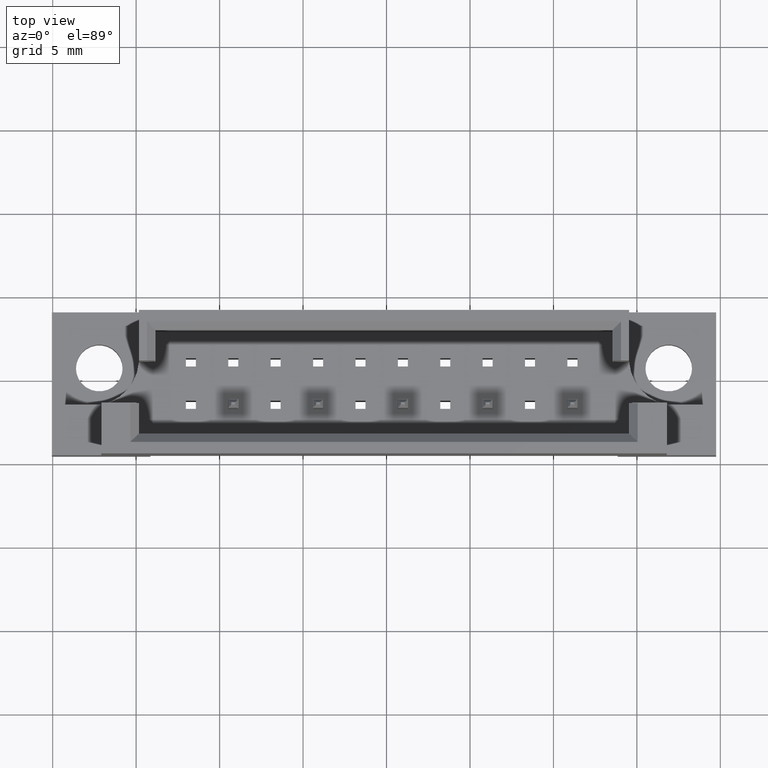
[diagram: clean part render]
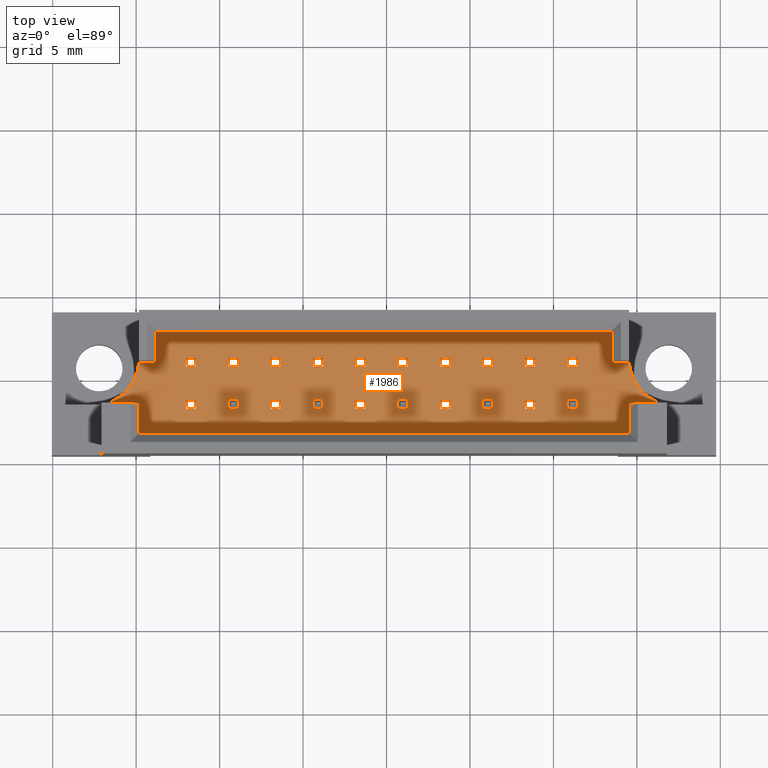
[diagram: same view with one face highlighted and labeled with its STEP entity id]
A machine part, top view. The second image highlights one B-rep face of the part: STEP entity #1986.
In plain terms, the highlighted planar face has unit normal (0, 0, 1).
Its self-contained STEP definition (entity closure, byte-faithful):
#14 = LINE ( 'NONE', #1979, #914 ) ;
#19 = LINE ( 'NONE', #910, #4094 ) ;
#31 = LINE ( 'NONE', #4859, #3092 ) ;
#67 = VERTEX_POINT ( 'NONE', #4893 ) ;
#69 = DIRECTION ( 'NONE',  ( 1.000000000000000000, 8.298255432836044823E-33, 0.0000000000000000000 ) ) ;
#92 = VERTEX_POINT ( 'NONE', #1741 ) ;
#97 = LINE ( 'NONE', #523, #4002 ) ;
#100 = EDGE_CURVE ( 'NONE', #2984, #4249, #3640, .T. ) ;
#113 = VERTEX_POINT ( 'NONE', #2867 ) ;
#133 = ORIENTED_EDGE ( 'NONE', *, *, #3289, .T. ) ;
#138 = VERTEX_POINT ( 'NONE', #1584 ) ;
#147 = AXIS2_PLACEMENT_3D ( 'NONE', #3182, #2457, #474 ) ;
#161 = EDGE_CURVE ( 'NONE', #4185, #3414, #2069, .T. ) ;
#164 = CARTESIAN_POINT ( 'NONE',  ( -8.730000000000000426, -1.520000000000001350, 5.199999999999999289 ) ) ;
#170 = EDGE_CURVE ( 'NONE', #823, #3414, #4672, .T. ) ;
#175 = VERTEX_POINT ( 'NONE', #363 ) ;
#176 = CARTESIAN_POINT ( 'NONE',  ( -19.90000000000000213, 4.299999999999996270, 5.199999999999999289 ) ) ;
#187 = DIRECTION ( 'NONE',  ( 1.000000000000000000, 8.298255432836044823E-33, 0.0000000000000000000 ) ) ;
#194 = ORIENTED_EDGE ( 'NONE', *, *, #4584, .T. ) ;
#201 = VERTEX_POINT ( 'NONE', #3623 ) ;
#216 = VECTOR ( 'NONE', #4140, 1000.000000000000000 ) ;
#217 = CARTESIAN_POINT ( 'NONE',  ( -17.48233981823222294, 1.476974248434024251, 5.200000000000000178 ) ) ;
#219 = VERTEX_POINT ( 'NONE', #2841 ) ;
#223 = CARTESIAN_POINT ( 'NONE',  ( 8.449999999999997513, -1.020000000000001128, 5.199999999999999289 ) ) ;
#244 = VECTOR ( 'NONE', #1440, 1000.000000000000000 ) ;
#272 = ORIENTED_EDGE ( 'NONE', *, *, #3626, .T. ) ;
#273 = CARTESIAN_POINT ( 'NONE',  ( 8.449999999999997513, 1.020000000000002016, 5.199999999999999289 ) ) ;
#278 = CARTESIAN_POINT ( 'NONE',  ( 5.909999999999998366, 1.020000000000002016, 5.199999999999999289 ) ) ;
#284 = EDGE_CURVE ( 'NONE', #1439, #4151, #923, .T. ) ;
#287 = DIRECTION ( 'NONE',  ( 1.000000000000000000, 8.298255432836044823E-33, 0.0000000000000000000 ) ) ;
#300 = CARTESIAN_POINT ( 'NONE',  ( -6.189999999999997726, -1.520000000000001350, 5.199999999999999289 ) ) ;
#307 = DIRECTION ( 'NONE',  ( 1.000000000000000000, 8.298255432836044823E-33, 0.0000000000000000000 ) ) ;
#316 = VECTOR ( 'NONE', #4201, 1000.000000000000000 ) ;
#317 = EDGE_CURVE ( 'NONE', #4249, #1459, #3507, .T. ) ;
#323 = VECTOR ( 'NONE', #1453, 1000.000000000000000 ) ;
#324 = CARTESIAN_POINT ( 'NONE',  ( -11.27000000000000135, 1.520000000000001794, 5.199999999999999289 ) ) ;
#325 = DIRECTION ( 'NONE',  ( -1.000000000000000000, -8.298255432836044823E-33, 0.0000000000000000000 ) ) ;
#327 = VECTOR ( 'NONE', #2995, 1000.000000000000000 ) ;
#341 = LINE ( 'NONE', #3575, #4311 ) ;
#344 = LINE ( 'NONE', #3238, #3603 ) ;
#348 = DIRECTION ( 'NONE',  ( -1.000000000000000000, -1.106434057711472506E-32, 0.0000000000000000000 ) ) ;
#351 = LINE ( 'NONE', #4315, #947 ) ;
#352 = ORIENTED_EDGE ( 'NONE', *, *, #3133, .T. ) ;
#356 = ORIENTED_EDGE ( 'NONE', *, *, #3033, .T. ) ;
#363 = CARTESIAN_POINT ( 'NONE',  ( 6.510000000000001563, -1.020000000000001128, 5.199999999999999289 ) ) ;
#368 = DIRECTION ( 'NONE',  ( 1.581382534738504097E-32, 1.000000000000000000, -0.0000000000000000000 ) ) ;
#406 = ORIENTED_EDGE ( 'NONE', *, *, #2946, .T. ) ;
#413 = CARTESIAN_POINT ( 'NONE',  ( -4.250000000000000888, 1.020000000000002016, 5.199999999999999289 ) ) ;
#419 = EDGE_CURVE ( 'NONE', #4938, #5099, #3397, .T. ) ;
#426 = DIRECTION ( 'NONE',  ( 1.581382534738504097E-32, 1.000000000000000000, -0.0000000000000000000 ) ) ;
#440 = ORIENTED_EDGE ( 'NONE', *, *, #4205, .T. ) ;
#442 = DIRECTION ( 'NONE',  ( -1.000000000000000000, -1.106434057711472506E-32, 0.0000000000000000000 ) ) ;
#448 = LINE ( 'NONE', #2552, #216 ) ;
#459 = ORIENTED_EDGE ( 'NONE', *, *, #4877, .T. ) ;
#465 = LINE ( 'NONE', #3665, #3851 ) ;
#474 = DIRECTION ( 'NONE',  ( 1.000000000000000000, 0.0000000000000000000, 0.0000000000000000000 ) ) ;
#498 = DIRECTION ( 'NONE',  ( 1.581382534738504097E-32, 1.000000000000000000, -0.0000000000000000000 ) ) ;
#519 = CARTESIAN_POINT ( 'NONE',  ( 10.99000000000000021, 1.520000000000001794, 5.199999999999999289 ) ) ;
#523 = CARTESIAN_POINT ( 'NONE',  ( -1.710000000000002407, -1.020000000000001128, 5.199999999999999289 ) ) ;
#533 = EDGE_CURVE ( 'NONE', #3585, #1456, #3833, .T. ) ;
#537 = VERTEX_POINT ( 'NONE', #4670 ) ;
#540 = ORIENTED_EDGE ( 'NONE', *, *, #284, .T. ) ;
#541 = CARTESIAN_POINT ( 'NONE',  ( -8.730000000000000426, 1.520000000000001794, 5.199999999999999289 ) ) ;
#543 = CARTESIAN_POINT ( 'NONE',  ( 5.909999999999998366, -1.020000000000001128, 5.199999999999999289 ) ) ;
#544 = EDGE_CURVE ( 'NONE', #2782, #2538, #3884, .T. ) ;
#548 = FACE_BOUND ( 'NONE', #1634, .T. ) ;
#554 = EDGE_CURVE ( 'NONE', #92, #1630, #4473, .T. ) ;
#561 = DIRECTION ( 'NONE',  ( -1.000000000000000000, -4.670409358399072282E-16, -0.0000000000000000000 ) ) ;
#567 = DIRECTION ( 'NONE',  ( 1.000000000000000000, 8.298255432836044823E-33, 0.0000000000000000000 ) ) ;
#568 = VERTEX_POINT ( 'NONE', #2901 ) ;
#571 = FACE_BOUND ( 'NONE', #4050, .T. ) ;
#573 = CARTESIAN_POINT ( 'NONE',  ( -6.790000000000001812, 1.020000000000002016, 5.199999999999999289 ) ) ;
#585 = CARTESIAN_POINT ( 'NONE',  ( 5.909999999999998366, -1.520000000000000906, 5.199999999999999289 ) ) ;
#586 = VECTOR ( 'NONE', #3082, 1000.000000000000000 ) ;
#590 = VECTOR ( 'NONE', #2477, 1000.000000000000000 ) ;
#595 = ORIENTED_EDGE ( 'NONE', *, *, #1069, .T. ) ;
#597 = VECTOR ( 'NONE', #2044, 1000.000000000000000 ) ;
#601 = CARTESIAN_POINT ( 'NONE',  ( 3.970000000000001528, -1.520000000000001350, 5.199999999999999289 ) ) ;
#603 = EDGE_CURVE ( 'NONE', #1358, #92, #2818, .T. ) ;
#610 = LINE ( 'NONE', #5052, #2932 ) ;
#615 = ORIENTED_EDGE ( 'NONE', *, *, #785, .T. ) ;
#617 = LINE ( 'NONE', #1374, #2096 ) ;
#622 = ORIENTED_EDGE ( 'NONE', *, *, #2256, .T. ) ;
#625 = DIRECTION ( 'NONE',  ( 0.0000000000000000000, 0.0000000000000000000, 1.000000000000000000 ) ) ;
#633 = DIRECTION ( 'NONE',  ( -7.906912673692520484E-33, -1.000000000000000000, 0.0000000000000000000 ) ) ;
#637 = DIRECTION ( 'NONE',  ( -7.906912673692520484E-33, -1.000000000000000000, 0.0000000000000000000 ) ) ;
#640 = ORIENTED_EDGE ( 'NONE', *, *, #4119, .T. ) ;
#644 = CARTESIAN_POINT ( 'NONE',  ( -6.790000000000001812, -1.520000000000000906, 5.199999999999999289 ) ) ;
#650 = ORIENTED_EDGE ( 'NONE', *, *, #4621, .T. ) ;
#653 = DIRECTION ( 'NONE',  ( 0.0000000000000000000, 0.0000000000000000000, 1.000000000000000000 ) ) ;
#665 = LINE ( 'NONE', #4644, #2925 ) ;
#671 = CARTESIAN_POINT ( 'NONE',  ( -11.87000000000000455, -1.520000000000000906, 5.199999999999999289 ) ) ;
#677 = EDGE_CURVE ( 'NONE', #823, #2064, #617, .T. ) ;
#685 = LINE ( 'NONE', #2989, #2272 ) ;
#698 = VECTOR ( 'NONE', #2857, 1000.000000000000000 ) ;
#704 = EDGE_CURVE ( 'NONE', #1823, #3585, #2232, .T. ) ;
#711 = VERTEX_POINT ( 'NONE', #164 ) ;
#718 = LINE ( 'NONE', #5062, #2174 ) ;
#720 = CARTESIAN_POINT ( 'NONE',  ( 3.369999999999998774, -1.020000000000001128, 5.199999999999999289 ) ) ;
#730 = EDGE_LOOP ( 'NONE', ( #978, #3200, #2960, #1742 ) ) ;
#744 = EDGE_LOOP ( 'NONE', ( #2509, #4230, #1015, #4502 ) ) ;
#750 = VECTOR ( 'NONE', #4884, 1000.000000000000000 ) ;
#754 = VECTOR ( 'NONE', #3714, 1000.000000000000000 ) ;
#756 = LINE ( 'NONE', #1170, #3467 ) ;
#760 = LINE ( 'NONE', #1925, #4516 ) ;
#766 = LINE ( 'NONE', #4322, #4914 ) ;
#785 = EDGE_CURVE ( 'NONE', #113, #3738, #2979, .T. ) ;
#799 = LINE ( 'NONE', #2717, #2191 ) ;
#804 = VERTEX_POINT ( 'NONE', #1797 ) ;
#816 = CARTESIAN_POINT ( 'NONE',  ( 14.68999999999999950, -1.270000000000031548, 5.199999999999999289 ) ) ;
#820 = CARTESIAN_POINT ( 'NONE',  ( 1.430000000000001270, 1.020000000000001572, 5.199999999999999289 ) ) ;
#823 = VERTEX_POINT ( 'NONE', #4552 ) ;
#827 = EDGE_LOOP ( 'NONE', ( #615, #3439, #4889, #2313 ) ) ;
#835 = CARTESIAN_POINT ( 'NONE',  ( 8.449999999999999289, 1.520000000000001794, 5.199999999999999289 ) ) ;
#847 = VERTEX_POINT ( 'NONE', #3357 ) ;
#865 = LINE ( 'NONE', #2087, #2666 ) ;
#872 = EDGE_CURVE ( 'NONE', #3896, #2343, #1690, .T. ) ;
#879 = DIRECTION ( 'NONE',  ( -1.000000000000000000, -8.298255432836044823E-33, 0.0000000000000000000 ) ) ;
#910 = CARTESIAN_POINT ( 'NONE',  ( -9.330000000000003624, -1.020000000000001128, 5.199999999999999289 ) ) ;
#914 = VECTOR ( 'NONE', #2340, 1000.000000000000000 ) ;
#921 = CARTESIAN_POINT ( 'NONE',  ( 10.98999999999999844, -1.020000000000001128, 5.199999999999999289 ) ) ;
#923 = LINE ( 'NONE', #948, #316 ) ;
#925 = CARTESIAN_POINT ( 'NONE',  ( 8.449999999999997513, 1.020000000000002016, 5.199999999999999289 ) ) ;
#932 = EDGE_CURVE ( 'NONE', #4635, #4125, #97, .T. ) ;
#947 = VECTOR ( 'NONE', #4758, 1000.000000000000000 ) ;
#948 = CARTESIAN_POINT ( 'NONE',  ( -11.87000000000000455, 1.020000000000002016, 5.199999999999999289 ) ) ;
#961 = VERTEX_POINT ( 'NONE', #4835 ) ;
#963 = CARTESIAN_POINT ( 'NONE',  ( -9.330000000000003624, 1.020000000000002016, 5.199999999999999289 ) ) ;
#968 = VECTOR ( 'NONE', #2092, 1000.000000000000000 ) ;
#972 = EDGE_CURVE ( 'NONE', #3450, #711, #3697, .T. ) ;
#973 = DIRECTION ( 'NONE',  ( -7.906912673692520484E-33, -1.000000000000000000, 0.0000000000000000000 ) ) ;
#978 = ORIENTED_EDGE ( 'NONE', *, *, #2760, .T. ) ;
#979 = LINE ( 'NONE', #2641, #4038 ) ;
#980 = VERTEX_POINT ( 'NONE', #2445 ) ;
#983 = ORIENTED_EDGE ( 'NONE', *, *, #1949, .T. ) ;
#987 = FACE_BOUND ( 'NONE', #2025, .T. ) ;
#992 = EDGE_CURVE ( 'NONE', #3109, #2404, #4658, .T. ) ;
#1015 = ORIENTED_EDGE ( 'NONE', *, *, #2071, .T. ) ;
#1017 = EDGE_CURVE ( 'NONE', #5026, #3713, #3848, .T. ) ;
#1020 = CARTESIAN_POINT ( 'NONE',  ( 14.68999999999999950, -3.100000000000135536, 5.199999999999999289 ) ) ;
#1024 = LINE ( 'NONE', #4557, #2677 ) ;
#1028 = EDGE_CURVE ( 'NONE', #2538, #980, #2297, .T. ) ;
#1033 = LINE ( 'NONE', #3105, #1936 ) ;
#1040 = ORIENTED_EDGE ( 'NONE', *, *, #1969, .T. ) ;
#1047 = CARTESIAN_POINT ( 'NONE',  ( -9.330000000000003624, 1.520000000000001794, 5.199999999999999289 ) ) ;
#1051 = EDGE_CURVE ( 'NONE', #3732, #4184, #1836, .T. ) ;
#1054 = EDGE_CURVE ( 'NONE', #5096, #3538, #665, .T. ) ;
#1064 = DIRECTION ( 'NONE',  ( -7.906912673692520484E-33, -1.000000000000000000, 0.0000000000000000000 ) ) ;
#1069 = EDGE_CURVE ( 'NONE', #4778, #67, #2202, .T. ) ;
#1083 = EDGE_CURVE ( 'NONE', #1456, #2209, #2365, .T. ) ;
#1088 = LINE ( 'NONE', #1893, #4769 ) ;
#1108 = CARTESIAN_POINT ( 'NONE',  ( 3.369999999999998774, -1.020000000000001128, 5.199999999999999289 ) ) ;
#1111 = CARTESIAN_POINT ( 'NONE',  ( 3.369999999999998774, -1.520000000000000906, 5.199999999999999289 ) ) ;
#1114 = CARTESIAN_POINT ( 'NONE',  ( 3.369999999999998774, 1.520000000000001794, 5.199999999999999289 ) ) ;
#1116 = ORIENTED_EDGE ( 'NONE', *, *, #3147, .T. ) ;
#1120 = VERTEX_POINT ( 'NONE', #3131 ) ;
#1161 = VERTEX_POINT ( 'NONE', #4995 ) ;
#1165 = EDGE_CURVE ( 'NONE', #1120, #4748, #3799, .T. ) ;
#1169 = ORIENTED_EDGE ( 'NONE', *, *, #100, .T. ) ;
#1170 = CARTESIAN_POINT ( 'NONE',  ( -6.790000000000001812, -1.020000000000001128, 5.199999999999999289 ) ) ;
#1182 = CARTESIAN_POINT ( 'NONE',  ( 0.8299999999999982947, -1.020000000000001128, 5.199999999999999289 ) ) ;
#1190 = LINE ( 'NONE', #720, #2602 ) ;
#1199 = EDGE_CURVE ( 'NONE', #2436, #201, #3436, .T. ) ;
#1234 = VECTOR ( 'NONE', #1282, 1000.000000000000000 ) ;
#1240 = ORIENTED_EDGE ( 'NONE', *, *, #932, .T. ) ;
#1244 = DIRECTION ( 'NONE',  ( 1.581382534738504097E-32, 1.000000000000000000, -0.0000000000000000000 ) ) ;
#1254 = VECTOR ( 'NONE', #348, 1000.000000000000000 ) ;
#1255 = EDGE_CURVE ( 'NONE', #3963, #4211, #2434, .T. ) ;
#1267 = DIRECTION ( 'NONE',  ( 1.000000000000000000, 9.637352644315549637E-17, 0.0000000000000000000 ) ) ;
#1282 = DIRECTION ( 'NONE',  ( 0.0000000000000000000, 1.000000000000000000, 0.0000000000000000000 ) ) ;
#1299 = CARTESIAN_POINT ( 'NONE',  ( -8.730000000000000426, -1.520000000000000906, 5.199999999999999289 ) ) ;
#1300 = VERTEX_POINT ( 'NONE', #2349 ) ;
#1314 = EDGE_CURVE ( 'NONE', #138, #5099, #1338, .T. ) ;
#1315 = DIRECTION ( 'NONE',  ( -1.000000000000000000, -1.106434057711472506E-32, 0.0000000000000000000 ) ) ;
#1320 = ORIENTED_EDGE ( 'NONE', *, *, #3536, .T. ) ;
#1338 = CIRCLE ( 'NONE', #2767, 2.800000000000000266 ) ;
#1340 = LINE ( 'NONE', #3232, #590 ) ;
#1355 = DIRECTION ( 'NONE',  ( -7.906912673692520484E-33, -1.000000000000000000, 0.0000000000000000000 ) ) ;
#1358 = VERTEX_POINT ( 'NONE', #2498 ) ;
#1360 = FACE_BOUND ( 'NONE', #2136, .T. ) ;
#1362 = CARTESIAN_POINT ( 'NONE',  ( -9.330000000000003624, 1.020000000000002016, 5.199999999999999289 ) ) ;
#1370 = LINE ( 'NONE', #2945, #4263 ) ;
#1374 = CARTESIAN_POINT ( 'NONE',  ( 13.68999999999999417, 1.270000000000029772, 5.199999999999999289 ) ) ;
#1380 = CARTESIAN_POINT ( 'NONE',  ( -13.68999999999999417, 1.270000000000029772, 5.199999999999999289 ) ) ;
#1385 = PLANE ( 'NONE',  #4676 ) ;
#1406 = VERTEX_POINT ( 'NONE', #3620 ) ;
#1410 = DIRECTION ( 'NONE',  ( 1.581382534738504097E-32, 1.000000000000000000, -0.0000000000000000000 ) ) ;
#1412 = CARTESIAN_POINT ( 'NONE',  ( 10.98999999999999844, 1.520000000000001794, 5.199999999999999289 ) ) ;
#1419 = DIRECTION ( 'NONE',  ( 1.000000000000000000, 8.298255432836044823E-33, 0.0000000000000000000 ) ) ;
#1427 = VECTOR ( 'NONE', #637, 1000.000000000000000 ) ;
#1428 = ORIENTED_EDGE ( 'NONE', *, *, #4444, .T. ) ;
#1438 = CARTESIAN_POINT ( 'NONE',  ( 5.909999999999997478, 1.020000000000002016, 5.199999999999999289 ) ) ;
#1439 = VERTEX_POINT ( 'NONE', #3674 ) ;
#1440 = DIRECTION ( 'NONE',  ( 1.000000000000000000, 8.298255432836044823E-33, 0.0000000000000000000 ) ) ;
#1449 = EDGE_CURVE ( 'NONE', #4393, #3379, #1340, .T. ) ;
#1453 = DIRECTION ( 'NONE',  ( -1.000000000000000000, -1.106434057711472506E-32, 0.0000000000000000000 ) ) ;
#1455 = DIRECTION ( 'NONE',  ( -1.000000000000000000, -1.106434057711472506E-32, 0.0000000000000000000 ) ) ;
#1456 = VERTEX_POINT ( 'NONE', #4464 ) ;
#1457 = CARTESIAN_POINT ( 'NONE',  ( -1.710000000000002407, -1.520000000000000906, 5.199999999999999289 ) ) ;
#1459 = VERTEX_POINT ( 'NONE', #2551 ) ;
#1462 = CARTESIAN_POINT ( 'NONE',  ( 9.050000000000000711, -1.520000000000000906, 5.199999999999999289 ) ) ;
#1479 = VERTEX_POINT ( 'NONE', #4816 ) ;
#1490 = VERTEX_POINT ( 'NONE', #1047 ) ;
#1510 = ORIENTED_EDGE ( 'NONE', *, *, #2401, .T. ) ;
#1514 = CARTESIAN_POINT ( 'NONE',  ( 10.98999999999999844, 1.020000000000002016, 5.199999999999999289 ) ) ;
#1516 = EDGE_CURVE ( 'NONE', #3528, #3109, #1855, .T. ) ;
#1519 = ORIENTED_EDGE ( 'NONE', *, *, #2094, .T. ) ;
#1531 = EDGE_CURVE ( 'NONE', #1459, #4827, #2161, .T. ) ;
#1539 = CARTESIAN_POINT ( 'NONE',  ( 13.68999999999999417, 1.270000000000029772, 5.199999999999999289 ) ) ;
#1555 = CARTESIAN_POINT ( 'NONE',  ( 10.98999999999999844, -1.520000000000000906, 5.199999999999999289 ) ) ;
#1561 = ORIENTED_EDGE ( 'NONE', *, *, #3312, .T. ) ;
#1577 = VECTOR ( 'NONE', #5184, 1000.000000000000000 ) ;
#1582 = LINE ( 'NONE', #1182, #2239 ) ;
#1584 = CARTESIAN_POINT ( 'NONE',  ( -16.94000000000001194, -1.270000000000031326, 5.199999999999998401 ) ) ;
#1589 = CARTESIAN_POINT ( 'NONE',  ( -1.710000000000002629, 1.020000000000002016, 5.199999999999999289 ) ) ;
#1607 = VECTOR ( 'NONE', #4544, 1000.000000000000000 ) ;
#1610 = LINE ( 'NONE', #1555, #1577 ) ;
#1612 = EDGE_CURVE ( 'NONE', #1490, #4778, #610, .T. ) ;
#1614 = CARTESIAN_POINT ( 'NONE',  ( 3.970000000000001972, -1.020000000000001128, 5.199999999999999289 ) ) ;
#1618 = DIRECTION ( 'NONE',  ( 1.581382534738504097E-32, 1.000000000000000000, -0.0000000000000000000 ) ) ;
#1630 = VERTEX_POINT ( 'NONE', #3877 ) ;
#1631 = DIRECTION ( 'NONE',  ( 1.000000000000000000, 8.298255432836044823E-33, 0.0000000000000000000 ) ) ;
#1634 = EDGE_LOOP ( 'NONE', ( #650, #4072, #3496, #3795 ) ) ;
#1661 = DIRECTION ( 'NONE',  ( -7.906912673692520484E-33, -1.000000000000000000, 0.0000000000000000000 ) ) ;
#1664 = CARTESIAN_POINT ( 'NONE',  ( 9.050000000000000711, -1.020000000000001128, 5.199999999999999289 ) ) ;
#1672 = VERTEX_POINT ( 'NONE', #4298 ) ;
#1680 = ORIENTED_EDGE ( 'NONE', *, *, #1782, .T. ) ;
#1690 = LINE ( 'NONE', #543, #2020 ) ;
#1701 = CARTESIAN_POINT ( 'NONE',  ( 11.59000000000000163, -1.020000000000001128, 5.199999999999999289 ) ) ;
#1706 = VERTEX_POINT ( 'NONE', #2004 ) ;
#1725 = VECTOR ( 'NONE', #4888, 1000.000000000000000 ) ;
#1730 = EDGE_CURVE ( 'NONE', #3738, #2436, #3149, .T. ) ;
#1741 = CARTESIAN_POINT ( 'NONE',  ( 1.430000000000000604, -1.520000000000001350, 5.199999999999999289 ) ) ;
#1742 = ORIENTED_EDGE ( 'NONE', *, *, #992, .T. ) ;
#1771 = FACE_BOUND ( 'NONE', #2024, .T. ) ;
#1773 = LINE ( 'NONE', #1362, #4433 ) ;
#1776 = VECTOR ( 'NONE', #1064, 1000.000000000000000 ) ;
#1781 = CARTESIAN_POINT ( 'NONE',  ( -14.68999999999999950, -1.270000000000031548, 5.199999999999999289 ) ) ;
#1782 = EDGE_CURVE ( 'NONE', #3551, #4614, #2473, .T. ) ;
#1786 = EDGE_CURVE ( 'NONE', #3790, #3450, #19, .T. ) ;
#1792 = VERTEX_POINT ( 'NONE', #4426 ) ;
#1795 = DIRECTION ( 'NONE',  ( -1.000000000000000000, -8.298255432836044823E-33, 0.0000000000000000000 ) ) ;
#1797 = CARTESIAN_POINT ( 'NONE',  ( -6.189999999999998614, 1.020000000000001572, 5.199999999999999289 ) ) ;
#1799 = FACE_BOUND ( 'NONE', #730, .T. ) ;
#1810 = CARTESIAN_POINT ( 'NONE',  ( 14.68999999999999950, -3.100000000000135536, 5.199999999999999289 ) ) ;
#1823 = VERTEX_POINT ( 'NONE', #835 ) ;
#1826 = FACE_BOUND ( 'NONE', #3762, .T. ) ;
#1829 = CARTESIAN_POINT ( 'NONE',  ( -6.790000000000001812, 1.520000000000001794, 5.199999999999999289 ) ) ;
#1836 = LINE ( 'NONE', #1810, #327 ) ;
#1842 = DIRECTION ( 'NONE',  ( 7.906912673692520484E-33, 1.000000000000000000, -0.0000000000000000000 ) ) ;
#1846 = CARTESIAN_POINT ( 'NONE',  ( 5.909999999999998366, -1.520000000000000906, 5.199999999999999289 ) ) ;
#1847 = VECTOR ( 'NONE', #1267, 1000.000000000000000 ) ;
#1848 = CARTESIAN_POINT ( 'NONE',  ( 11.59000000000000163, -1.520000000000000906, 5.199999999999999289 ) ) ;
#1854 = VECTOR ( 'NONE', #4281, 1000.000000000000000 ) ;
#1855 = LINE ( 'NONE', #2192, #4934 ) ;
#1858 = VECTOR ( 'NONE', #1410, 1000.000000000000000 ) ;
#1867 = DIRECTION ( 'NONE',  ( -7.906912673692520484E-33, -1.000000000000000000, 0.0000000000000000000 ) ) ;
#1870 = ORIENTED_EDGE ( 'NONE', *, *, #972, .T. ) ;
#1873 = DIRECTION ( 'NONE',  ( 1.000000000000000000, 8.298255432836044823E-33, 0.0000000000000000000 ) ) ;
#1893 = CARTESIAN_POINT ( 'NONE',  ( 0.8299999999999981837, 1.020000000000002016, 5.199999999999999289 ) ) ;
#1906 = CARTESIAN_POINT ( 'NONE',  ( -1.109999999999998987, -1.020000000000001128, 5.199999999999999289 ) ) ;
#1917 = ORIENTED_EDGE ( 'NONE', *, *, #3249, .T. ) ;
#1918 = VERTEX_POINT ( 'NONE', #1111 ) ;
#1922 = VERTEX_POINT ( 'NONE', #2982 ) ;
#1925 = CARTESIAN_POINT ( 'NONE',  ( -1.710000000000002407, 1.520000000000001794, 5.199999999999999289 ) ) ;
#1927 = VECTOR ( 'NONE', #442, 1000.000000000000000 ) ;
#1936 = VECTOR ( 'NONE', #5007, 1000.000000000000000 ) ;
#1949 = EDGE_CURVE ( 'NONE', #219, #3896, #3110, .T. ) ;
#1966 = VERTEX_POINT ( 'NONE', #2598 ) ;
#1969 = EDGE_CURVE ( 'NONE', #4184, #4185, #4306, .T. ) ;
#1971 = DIRECTION ( 'NONE',  ( -7.906912673692520484E-33, -1.000000000000000000, 0.0000000000000000000 ) ) ;
#1979 = CARTESIAN_POINT ( 'NONE',  ( -9.330000000000003624, -1.020000000000001128, 5.199999999999999289 ) ) ;
#1986 = ADVANCED_FACE ( 'NONE', ( #4191, #987, #2624, #4918, #4534, #4135, #4215, #4156, #2571, #548, #2155, #1360, #571, #3743, #1826, #3775, #1771, #4945, #1799, #2958, #4554 ), #1385, .T. ) ;
#1991 = CARTESIAN_POINT ( 'NONE',  ( -14.68999999999999950, -3.100000000000135536, 5.199999999999999289 ) ) ;
#2004 = CARTESIAN_POINT ( 'NONE',  ( 11.59000000000000163, 1.020000000000001572, 5.199999999999999289 ) ) ;
#2017 = VECTOR ( 'NONE', #3489, 1000.000000000000000 ) ;
#2020 = VECTOR ( 'NONE', #3251, 1000.000000000000000 ) ;
#2024 = EDGE_LOOP ( 'NONE', ( #983, #2594, #2230, #4642 ) ) ;
#2025 = EDGE_LOOP ( 'NONE', ( #3400, #3359, #3035, #540 ) ) ;
#2044 = DIRECTION ( 'NONE',  ( -1.000000000000000000, -8.298255432836044823E-33, 0.0000000000000000000 ) ) ;
#2064 = VERTEX_POINT ( 'NONE', #1539 ) ;
#2069 = LINE ( 'NONE', #816, #1847 ) ;
#2071 = EDGE_CURVE ( 'NONE', #804, #1161, #344, .T. ) ;
#2076 = ORIENTED_EDGE ( 'NONE', *, *, #2554, .T. ) ;
#2079 = CARTESIAN_POINT ( 'NONE',  ( -11.27000000000000135, 1.020000000000001572, 5.199999999999999289 ) ) ;
#2087 = CARTESIAN_POINT ( 'NONE',  ( 0.8299999999999981837, -1.020000000000001128, 5.199999999999999289 ) ) ;
#2092 = DIRECTION ( 'NONE',  ( 7.906912673692520484E-33, 1.000000000000000000, -0.0000000000000000000 ) ) ;
#2094 = EDGE_CURVE ( 'NONE', #711, #1792, #2735, .T. ) ;
#2095 = VECTOR ( 'NONE', #1971, 1000.000000000000000 ) ;
#2096 = VECTOR ( 'NONE', #561, 1000.000000000000000 ) ;
#2101 = CARTESIAN_POINT ( 'NONE',  ( 8.449999999999997513, -1.020000000000001128, 5.199999999999999289 ) ) ;
#2122 = CARTESIAN_POINT ( 'NONE',  ( 0.8299999999999982947, 1.020000000000002016, 5.199999999999999289 ) ) ;
#2127 = CARTESIAN_POINT ( 'NONE',  ( 9.050000000000000711, 1.520000000000001794, 5.199999999999999289 ) ) ;
#2136 = EDGE_LOOP ( 'NONE', ( #459, #406, #2560, #3817 ) ) ;
#2140 = CARTESIAN_POINT ( 'NONE',  ( -6.790000000000001812, -1.520000000000000906, 5.199999999999999289 ) ) ;
#2142 = EDGE_CURVE ( 'NONE', #4474, #1706, #3339, .T. ) ;
#2155 = FACE_BOUND ( 'NONE', #3223, .T. ) ;
#2161 = LINE ( 'NONE', #2274, #4694 ) ;
#2173 = EDGE_CURVE ( 'NONE', #1479, #5026, #2556, .T. ) ;
#2174 = VECTOR ( 'NONE', #3478, 1000.000000000000000 ) ;
#2180 = CARTESIAN_POINT ( 'NONE',  ( -11.87000000000000455, -1.520000000000000906, 5.199999999999999289 ) ) ;
#2188 = VECTOR ( 'NONE', #3779, 1000.000000000000000 ) ;
#2191 = VECTOR ( 'NONE', #3191, 1000.000000000000000 ) ;
#2192 = CARTESIAN_POINT ( 'NONE',  ( 8.449999999999997513, -1.020000000000001128, 5.199999999999999289 ) ) ;
#2202 = LINE ( 'NONE', #2285, #1427 ) ;
#2209 = VERTEX_POINT ( 'NONE', #925 ) ;
#2217 = LINE ( 'NONE', #963, #5079 ) ;
#2228 = CARTESIAN_POINT ( 'NONE',  ( 10.98999999999999844, -1.020000000000001128, 5.199999999999999289 ) ) ;
#2230 = ORIENTED_EDGE ( 'NONE', *, *, #4994, .T. ) ;
#2232 = LINE ( 'NONE', #2920, #3345 ) ;
#2236 = LINE ( 'NONE', #223, #2682 ) ;
#2237 = VERTEX_POINT ( 'NONE', #3296 ) ;
#2239 = VECTOR ( 'NONE', #2789, 1000.000000000000000 ) ;
#2255 = ORIENTED_EDGE ( 'NONE', *, *, #5036, .T. ) ;
#2256 = EDGE_CURVE ( 'NONE', #2237, #4635, #1370, .T. ) ;
#2272 = VECTOR ( 'NONE', #633, 1000.000000000000000 ) ;
#2274 = CARTESIAN_POINT ( 'NONE',  ( -4.250000000000000888, -1.020000000000001128, 5.199999999999999289 ) ) ;
#2282 = VECTOR ( 'NONE', #3206, 1000.000000000000000 ) ;
#2285 = CARTESIAN_POINT ( 'NONE',  ( -8.730000000000000426, 1.020000000000002016, 5.199999999999999289 ) ) ;
#2290 = LINE ( 'NONE', #1514, #2347 ) ;
#2297 = LINE ( 'NONE', #1589, #4930 ) ;
#2306 = CARTESIAN_POINT ( 'NONE',  ( -11.87000000000000455, -1.020000000000001128, 5.199999999999999289 ) ) ;
#2309 = EDGE_CURVE ( 'NONE', #5093, #2699, #5038, .T. ) ;
#2313 = ORIENTED_EDGE ( 'NONE', *, *, #5150, .T. ) ;
#2329 = DIRECTION ( 'NONE',  ( 0.0000000000000000000, 1.000000000000000000, 0.0000000000000000000 ) ) ;
#2336 = EDGE_LOOP ( 'NONE', ( #3798, #5113, #3715, #5127 ) ) ;
#2340 = DIRECTION ( 'NONE',  ( 7.906912673692520484E-33, 1.000000000000000000, -0.0000000000000000000 ) ) ;
#2342 = VECTOR ( 'NONE', #1873, 1000.000000000000000 ) ;
#2343 = VERTEX_POINT ( 'NONE', #4623 ) ;
#2347 = VECTOR ( 'NONE', #1455, 1000.000000000000000 ) ;
#2349 = CARTESIAN_POINT ( 'NONE',  ( 11.59000000000000341, -1.520000000000001350, 5.199999999999999289 ) ) ;
#2365 = LINE ( 'NONE', #273, #1254 ) ;
#2394 = DIRECTION ( 'NONE',  ( -7.906912673692520484E-33, -1.000000000000000000, 0.0000000000000000000 ) ) ;
#2401 = EDGE_CURVE ( 'NONE', #3545, #5066, #1033, .T. ) ;
#2404 = VERTEX_POINT ( 'NONE', #2635 ) ;
#2422 = DIRECTION ( 'NONE',  ( 1.000000000000000000, 8.298255432836044823E-33, 0.0000000000000000000 ) ) ;
#2434 = LINE ( 'NONE', #2122, #3844 ) ;
#2436 = VERTEX_POINT ( 'NONE', #2306 ) ;
#2441 = CARTESIAN_POINT ( 'NONE',  ( -3.649999999999997691, 1.020000000000001572, 5.199999999999999289 ) ) ;
#2445 = CARTESIAN_POINT ( 'NONE',  ( -1.710000000000003073, 1.520000000000001794, 5.199999999999999289 ) ) ;
#2448 = ORIENTED_EDGE ( 'NONE', *, *, #704, .T. ) ;
#2449 = DIRECTION ( 'NONE',  ( 1.000000000000000000, 8.298255432836044823E-33, 0.0000000000000000000 ) ) ;
#2454 = EDGE_CURVE ( 'NONE', #3600, #2567, #3883, .T. ) ;
#2457 = DIRECTION ( 'NONE',  ( 0.0000000000000000000, 0.0000000000000000000, 1.000000000000000000 ) ) ;
#2465 = EDGE_LOOP ( 'NONE', ( #4763, #3583, #356, #3895 ) ) ;
#2473 = LINE ( 'NONE', #413, #4190 ) ;
#2477 = DIRECTION ( 'NONE',  ( -7.906912673692520484E-33, -1.000000000000000000, 0.0000000000000000000 ) ) ;
#2498 = CARTESIAN_POINT ( 'NONE',  ( 1.430000000000001492, -1.020000000000001128, 5.199999999999999289 ) ) ;
#2500 = VECTOR ( 'NONE', #3015, 1000.000000000000000 ) ;
#2507 = EDGE_CURVE ( 'NONE', #4151, #5096, #341, .T. ) ;
#2509 = ORIENTED_EDGE ( 'NONE', *, *, #4489, .T. ) ;
#2521 = CARTESIAN_POINT ( 'NONE',  ( -3.649999999999997691, -1.520000000000000906, 5.199999999999999289 ) ) ;
#2538 = VERTEX_POINT ( 'NONE', #5137 ) ;
#2540 = DIRECTION ( 'NONE',  ( -1.000000000000000000, -8.298255432836044823E-33, 0.0000000000000000000 ) ) ;
#2551 = CARTESIAN_POINT ( 'NONE',  ( -4.250000000000000888, -1.520000000000000906, 5.199999999999999289 ) ) ;
#2552 = CARTESIAN_POINT ( 'NONE',  ( 13.68999999999999417, 3.100000000000133760, 5.199999999999999289 ) ) ;
#2553 = CARTESIAN_POINT ( 'NONE',  ( -6.790000000000001812, -1.020000000000001128, 5.199999999999999289 ) ) ;
#2554 = EDGE_CURVE ( 'NONE', #3581, #1358, #1582, .T. ) ;
#2555 = EDGE_CURVE ( 'NONE', #4614, #3545, #3977, .T. ) ;
#2556 = LINE ( 'NONE', #4881, #3759 ) ;
#2560 = ORIENTED_EDGE ( 'NONE', *, *, #1255, .T. ) ;
#2567 = VERTEX_POINT ( 'NONE', #1614 ) ;
#2571 = FACE_BOUND ( 'NONE', #4696, .T. ) ;
#2572 = DIRECTION ( 'NONE',  ( 1.581382534738504097E-32, 1.000000000000000000, -0.0000000000000000000 ) ) ;
#2573 = LINE ( 'NONE', #4269, #2017 ) ;
#2588 = VECTOR ( 'NONE', #307, 1000.000000000000000 ) ;
#2589 = CARTESIAN_POINT ( 'NONE',  ( -1.109999999999999210, 1.020000000000002016, 5.199999999999999289 ) ) ;
#2594 = ORIENTED_EDGE ( 'NONE', *, *, #872, .T. ) ;
#2598 = CARTESIAN_POINT ( 'NONE',  ( -6.189999999999998614, 1.520000000000001794, 5.199999999999999289 ) ) ;
#2602 = VECTOR ( 'NONE', #2796, 1000.000000000000000 ) ;
#2618 = CARTESIAN_POINT ( 'NONE',  ( 5.909999999999998366, 1.520000000000001794, 5.199999999999999289 ) ) ;
#2624 = FACE_BOUND ( 'NONE', #827, .T. ) ;
#2629 = VECTOR ( 'NONE', #5019, 1000.000000000000000 ) ;
#2635 = CARTESIAN_POINT ( 'NONE',  ( 9.050000000000002487, -1.520000000000001350, 5.199999999999999289 ) ) ;
#2641 = CARTESIAN_POINT ( 'NONE',  ( 3.369999999999998774, -1.520000000000000906, 5.199999999999999289 ) ) ;
#2650 = ORIENTED_EDGE ( 'NONE', *, *, #3241, .T. ) ;
#2665 = DIRECTION ( 'NONE',  ( -1.000000000000000000, -8.298255432836044823E-33, 0.0000000000000000000 ) ) ;
#2666 = VECTOR ( 'NONE', #3670, 1000.000000000000000 ) ;
#2677 = VECTOR ( 'NONE', #4241, 1000.000000000000000 ) ;
#2681 = CARTESIAN_POINT ( 'NONE',  ( 13.68999999999999417, 3.100000000000133760, 5.199999999999999289 ) ) ;
#2682 = VECTOR ( 'NONE', #1842, 1000.000000000000000 ) ;
#2691 = VERTEX_POINT ( 'NONE', #2140 ) ;
#2697 = CARTESIAN_POINT ( 'NONE',  ( -11.87000000000000455, -1.020000000000001128, 5.199999999999999289 ) ) ;
#2699 = VERTEX_POINT ( 'NONE', #1701 ) ;
#2700 = VERTEX_POINT ( 'NONE', #4465 ) ;
#2703 = EDGE_CURVE ( 'NONE', #568, #5093, #4952, .T. ) ;
#2704 = EDGE_CURVE ( 'NONE', #4104, #847, #448, .T. ) ;
#2717 = CARTESIAN_POINT ( 'NONE',  ( -11.27000000000000135, -1.520000000000000906, 5.199999999999999289 ) ) ;
#2735 = LINE ( 'NONE', #4332, #597 ) ;
#2739 = DIRECTION ( 'NONE',  ( 1.581382534738504097E-32, 1.000000000000000000, -0.0000000000000000000 ) ) ;
#2750 = CARTESIAN_POINT ( 'NONE',  ( -11.87000000000000455, -1.020000000000001128, 5.199999999999999289 ) ) ;
#2753 = CARTESIAN_POINT ( 'NONE',  ( 5.909999999999998366, 1.520000000000001794, 5.199999999999999289 ) ) ;
#2760 = EDGE_CURVE ( 'NONE', #2404, #3860, #3392, .T. ) ;
#2764 = ORIENTED_EDGE ( 'NONE', *, *, #1051, .T. ) ;
#2767 = AXIS2_PLACEMENT_3D ( 'NONE', #217, #653, #4954 ) ;
#2770 = CARTESIAN_POINT ( 'NONE',  ( 8.449999999999997513, 1.020000000000002016, 5.199999999999999289 ) ) ;
#2779 = CARTESIAN_POINT ( 'NONE',  ( -3.649999999999997691, 1.020000000000002016, 5.199999999999999289 ) ) ;
#2782 = VERTEX_POINT ( 'NONE', #3781 ) ;
#2789 = DIRECTION ( 'NONE',  ( 1.000000000000000000, 8.298255432836044823E-33, 0.0000000000000000000 ) ) ;
#2796 = DIRECTION ( 'NONE',  ( 7.906912673692520484E-33, 1.000000000000000000, -0.0000000000000000000 ) ) ;
#2801 = ORIENTED_EDGE ( 'NONE', *, *, #1083, .T. ) ;
#2803 = EDGE_LOOP ( 'NONE', ( #4149, #3542, #1116, #4760, #3785, #4448, #3440, #3556, #1320, #2764, #1040, #4339 ) ) ;
#2808 = DIRECTION ( 'NONE',  ( -7.906912673692520484E-33, -1.000000000000000000, 0.0000000000000000000 ) ) ;
#2818 = LINE ( 'NONE', #4495, #750 ) ;
#2823 = CARTESIAN_POINT ( 'NONE',  ( -4.250000000000000000, 1.520000000000001794, 5.199999999999999289 ) ) ;
#2826 = CARTESIAN_POINT ( 'NONE',  ( 3.369999999999997886, 1.520000000000001794, 5.199999999999999289 ) ) ;
#2832 = LINE ( 'NONE', #4873, #1234 ) ;
#2835 = VECTOR ( 'NONE', #4556, 1000.000000000000000 ) ;
#2841 = CARTESIAN_POINT ( 'NONE',  ( 6.510000000000001563, -1.520000000000001350, 5.199999999999999289 ) ) ;
#2857 = DIRECTION ( 'NONE',  ( -0.0000000000000000000, -1.000000000000000000, -0.0000000000000000000 ) ) ;
#2867 = CARTESIAN_POINT ( 'NONE',  ( -11.27000000000000135, -1.520000000000001350, 5.199999999999999289 ) ) ;
#2868 = ORIENTED_EDGE ( 'NONE', *, *, #2916, .T. ) ;
#2881 = DIRECTION ( 'NONE',  ( -7.906912673692520484E-33, -1.000000000000000000, 0.0000000000000000000 ) ) ;
#2901 = CARTESIAN_POINT ( 'NONE',  ( 10.98999999999999844, -1.520000000000000906, 5.199999999999999289 ) ) ;
#2904 = CARTESIAN_POINT ( 'NONE',  ( 0.8299999999999981837, -1.020000000000001128, 5.199999999999999289 ) ) ;
#2916 = EDGE_CURVE ( 'NONE', #1300, #568, #1610, .T. ) ;
#2920 = CARTESIAN_POINT ( 'NONE',  ( 8.449999999999997513, 1.520000000000001794, 5.199999999999999289 ) ) ;
#2925 = VECTOR ( 'NONE', #973, 1000.000000000000000 ) ;
#2932 = VECTOR ( 'NONE', #1419, 1000.000000000000000 ) ;
#2945 = CARTESIAN_POINT ( 'NONE',  ( -1.710000000000002629, -1.020000000000001128, 5.199999999999999289 ) ) ;
#2946 = EDGE_CURVE ( 'NONE', #4240, #3963, #766, .T. ) ;
#2958 = FACE_BOUND ( 'NONE', #4307, .T. ) ;
#2959 = CARTESIAN_POINT ( 'NONE',  ( -4.250000000000000888, -1.020000000000001128, 5.199999999999999289 ) ) ;
#2960 = ORIENTED_EDGE ( 'NONE', *, *, #1516, .T. ) ;
#2971 = DIRECTION ( 'NONE',  ( 7.906912673692520484E-33, 1.000000000000000000, -0.0000000000000000000 ) ) ;
#2978 = VERTEX_POINT ( 'NONE', #4299 ) ;
#2979 = LINE ( 'NONE', #2180, #5090 ) ;
#2982 = CARTESIAN_POINT ( 'NONE',  ( -1.109999999999999210, 1.520000000000001794, 5.199999999999999289 ) ) ;
#2984 = VERTEX_POINT ( 'NONE', #3901 ) ;
#2989 = CARTESIAN_POINT ( 'NONE',  ( 6.510000000000001563, 1.020000000000002016, 5.199999999999999289 ) ) ;
#2993 = VECTOR ( 'NONE', #2572, 1000.000000000000000 ) ;
#2995 = DIRECTION ( 'NONE',  ( 1.000000000000000000, -0.0000000000000000000, -0.0000000000000000000 ) ) ;
#3005 = LINE ( 'NONE', #3356, #5017 ) ;
#3015 = DIRECTION ( 'NONE',  ( -7.906912673692520484E-33, -1.000000000000000000, 0.0000000000000000000 ) ) ;
#3033 = EDGE_CURVE ( 'NONE', #2978, #1120, #3572, .T. ) ;
#3035 = ORIENTED_EDGE ( 'NONE', *, *, #4008, .T. ) ;
#3045 = DIRECTION ( 'NONE',  ( 1.000000000000000000, 8.298255432836044823E-33, 0.0000000000000000000 ) ) ;
#3055 = ORIENTED_EDGE ( 'NONE', *, *, #533, .T. ) ;
#3065 = CARTESIAN_POINT ( 'NONE',  ( 3.970000000000001972, 1.520000000000001794, 5.199999999999999289 ) ) ;
#3069 = CARTESIAN_POINT ( 'NONE',  ( 8.449999999999997513, -1.520000000000000906, 5.199999999999999289 ) ) ;
#3082 = DIRECTION ( 'NONE',  ( 1.000000000000000000, 8.298255432836044823E-33, 0.0000000000000000000 ) ) ;
#3092 = VECTOR ( 'NONE', #5168, 1000.000000000000000 ) ;
#3105 = CARTESIAN_POINT ( 'NONE',  ( -4.250000000000000888, 1.520000000000001794, 5.199999999999999289 ) ) ;
#3109 = VERTEX_POINT ( 'NONE', #1664 ) ;
#3110 = LINE ( 'NONE', #1846, #4432 ) ;
#3115 = CARTESIAN_POINT ( 'NONE',  ( -4.250000000000000888, -1.520000000000000906, 5.199999999999999289 ) ) ;
#3120 = ORIENTED_EDGE ( 'NONE', *, *, #554, .T. ) ;
#3131 = CARTESIAN_POINT ( 'NONE',  ( 3.369999999999997886, 1.020000000000002016, 5.199999999999999289 ) ) ;
#3133 = EDGE_CURVE ( 'NONE', #1630, #3581, #865, .T. ) ;
#3134 = ORIENTED_EDGE ( 'NONE', *, *, #3495, .T. ) ;
#3144 = ORIENTED_EDGE ( 'NONE', *, *, #4711, .T. ) ;
#3147 = EDGE_CURVE ( 'NONE', #2064, #4104, #2832, .T. ) ;
#3149 = LINE ( 'NONE', #2750, #2282 ) ;
#3159 = LINE ( 'NONE', #3887, #2095 ) ;
#3160 = CARTESIAN_POINT ( 'NONE',  ( 10.98999999999999844, -1.020000000000001128, 5.199999999999999289 ) ) ;
#3162 = CARTESIAN_POINT ( 'NONE',  ( -8.730000000000000426, -1.020000000000001128, 5.199999999999999289 ) ) ;
#3165 = CARTESIAN_POINT ( 'NONE',  ( -4.250000000000001776, 1.020000000000002016, 5.199999999999999289 ) ) ;
#3182 = CARTESIAN_POINT ( 'NONE',  ( 17.48233981823222294, 1.476974248434020032, 5.200000000000000178 ) ) ;
#3191 = DIRECTION ( 'NONE',  ( -7.906912673692520484E-33, -1.000000000000000000, 0.0000000000000000000 ) ) ;
#3192 = EDGE_CURVE ( 'NONE', #1161, #961, #4997, .T. ) ;
#3193 = DIRECTION ( 'NONE',  ( -1.000000000000000000, -1.106434057711472506E-32, 0.0000000000000000000 ) ) ;
#3200 = ORIENTED_EDGE ( 'NONE', *, *, #5030, .T. ) ;
#3201 = LINE ( 'NONE', #2779, #4929 ) ;
#3206 = DIRECTION ( 'NONE',  ( 7.906912673692520484E-33, 1.000000000000000000, -0.0000000000000000000 ) ) ;
#3223 = EDGE_LOOP ( 'NONE', ( #5040, #622, #1240, #4397 ) ) ;
#3232 = CARTESIAN_POINT ( 'NONE',  ( -6.189999999999998614, -1.520000000000000906, 5.199999999999999289 ) ) ;
#3236 = ORIENTED_EDGE ( 'NONE', *, *, #1531, .T. ) ;
#3238 = CARTESIAN_POINT ( 'NONE',  ( -6.790000000000001812, 1.020000000000002016, 5.199999999999999289 ) ) ;
#3240 = LINE ( 'NONE', #1781, #5082 ) ;
#3241 = EDGE_CURVE ( 'NONE', #3565, #4474, #5046, .T. ) ;
#3247 = LINE ( 'NONE', #3693, #698 ) ;
#3249 = EDGE_CURVE ( 'NONE', #4827, #2984, #4193, .T. ) ;
#3251 = DIRECTION ( 'NONE',  ( 7.906912673692520484E-33, 1.000000000000000000, -0.0000000000000000000 ) ) ;
#3289 = EDGE_CURVE ( 'NONE', #67, #1672, #2217, .T. ) ;
#3296 = CARTESIAN_POINT ( 'NONE',  ( -1.710000000000002629, -1.520000000000000906, 5.199999999999999289 ) ) ;
#3300 = CARTESIAN_POINT ( 'NONE',  ( -13.68999999999999417, 1.270000000000029772, 5.199999999999999289 ) ) ;
#3302 = CARTESIAN_POINT ( 'NONE',  ( -4.250000000000000888, -1.020000000000001128, 5.199999999999999289 ) ) ;
#3305 = ORIENTED_EDGE ( 'NONE', *, *, #1017, .T. ) ;
#3312 = EDGE_CURVE ( 'NONE', #2699, #1300, #4633, .T. ) ;
#3339 = LINE ( 'NONE', #4092, #1607 ) ;
#3345 = VECTOR ( 'NONE', #3812, 1000.000000000000000 ) ;
#3347 = EDGE_LOOP ( 'NONE', ( #3382, #595, #133, #1428 ) ) ;
#3356 = CARTESIAN_POINT ( 'NONE',  ( 5.909999999999998366, -1.020000000000001128, 5.199999999999999289 ) ) ;
#3357 = CARTESIAN_POINT ( 'NONE',  ( -13.68999999999999417, 3.100000000000133760, 5.199999999999999289 ) ) ;
#3359 = ORIENTED_EDGE ( 'NONE', *, *, #1054, .T. ) ;
#3379 = VERTEX_POINT ( 'NONE', #300 ) ;
#3382 = ORIENTED_EDGE ( 'NONE', *, *, #1612, .T. ) ;
#3384 = EDGE_LOOP ( 'NONE', ( #2868, #4043, #4547, #1561 ) ) ;
#3385 = DIRECTION ( 'NONE',  ( 1.000000000000000000, 0.0000000000000000000, -0.0000000000000000000 ) ) ;
#3387 = CARTESIAN_POINT ( 'NONE',  ( 11.59000000000000163, 1.520000000000001794, 5.199999999999999289 ) ) ;
#3392 = LINE ( 'NONE', #3069, #3734 ) ;
#3397 = LINE ( 'NONE', #3832, #1854 ) ;
#3400 = ORIENTED_EDGE ( 'NONE', *, *, #2507, .T. ) ;
#3407 = ORIENTED_EDGE ( 'NONE', *, *, #2555, .T. ) ;
#3414 = VERTEX_POINT ( 'NONE', #3512 ) ;
#3436 = LINE ( 'NONE', #2697, #244 ) ;
#3439 = ORIENTED_EDGE ( 'NONE', *, *, #1730, .T. ) ;
#3440 = ORIENTED_EDGE ( 'NONE', *, *, #1314, .F. ) ;
#3450 = VERTEX_POINT ( 'NONE', #3162 ) ;
#3452 = EDGE_CURVE ( 'NONE', #4569, #2978, #351, .T. ) ;
#3456 = LINE ( 'NONE', #2589, #2629 ) ;
#3460 = CARTESIAN_POINT ( 'NONE',  ( 3.369999999999998774, 1.020000000000002016, 5.199999999999999289 ) ) ;
#3467 = VECTOR ( 'NONE', #4370, 1000.000000000000000 ) ;
#3471 = EDGE_CURVE ( 'NONE', #4031, #4393, #756, .T. ) ;
#3478 = DIRECTION ( 'NONE',  ( 7.906912673692520484E-33, 1.000000000000000000, -0.0000000000000000000 ) ) ;
#3489 = DIRECTION ( 'NONE',  ( 1.581382534738504097E-32, 1.000000000000000000, -0.0000000000000000000 ) ) ;
#3491 = ORIENTED_EDGE ( 'NONE', *, *, #3770, .T. ) ;
#3495 = EDGE_CURVE ( 'NONE', #2567, #4998, #3634, .T. ) ;
#3496 = ORIENTED_EDGE ( 'NONE', *, *, #544, .T. ) ;
#3504 = CARTESIAN_POINT ( 'NONE',  ( 8.449999999999997513, -1.520000000000000906, 5.199999999999999289 ) ) ;
#3507 = LINE ( 'NONE', #3115, #4174 ) ;
#3512 = CARTESIAN_POINT ( 'NONE',  ( 16.94000000000001194, -1.270000000000035323, 5.199999999999998401 ) ) ;
#3525 = VECTOR ( 'NONE', #426, 1000.000000000000000 ) ;
#3526 = CARTESIAN_POINT ( 'NONE',  ( 1.430000000000001270, 1.520000000000001794, 5.199999999999999289 ) ) ;
#3527 = VECTOR ( 'NONE', #1795, 1000.000000000000000 ) ;
#3528 = VERTEX_POINT ( 'NONE', #2101 ) ;
#3536 = EDGE_CURVE ( 'NONE', #1406, #3732, #3247, .T. ) ;
#3538 = VERTEX_POINT ( 'NONE', #2079 ) ;
#3542 = ORIENTED_EDGE ( 'NONE', *, *, #677, .T. ) ;
#3545 = VERTEX_POINT ( 'NONE', #2823 ) ;
#3551 = VERTEX_POINT ( 'NONE', #2441 ) ;
#3556 = ORIENTED_EDGE ( 'NONE', *, *, #3939, .T. ) ;
#3565 = VERTEX_POINT ( 'NONE', #519 ) ;
#3572 = LINE ( 'NONE', #5159, #1927 ) ;
#3574 = LINE ( 'NONE', #2753, #2588 ) ;
#3575 = CARTESIAN_POINT ( 'NONE',  ( -11.87000000000000455, 1.520000000000001794, 5.199999999999999289 ) ) ;
#3576 = EDGE_CURVE ( 'NONE', #847, #4938, #4865, .T. ) ;
#3581 = VERTEX_POINT ( 'NONE', #2904 ) ;
#3583 = ORIENTED_EDGE ( 'NONE', *, *, #3452, .T. ) ;
#3585 = VERTEX_POINT ( 'NONE', #2127 ) ;
#3600 = VERTEX_POINT ( 'NONE', #3735 ) ;
#3603 = VECTOR ( 'NONE', #4363, 1000.000000000000000 ) ;
#3620 = CARTESIAN_POINT ( 'NONE',  ( -14.68999999999999950, -1.270000000000031548, 5.199999999999999289 ) ) ;
#3623 = CARTESIAN_POINT ( 'NONE',  ( -11.27000000000000135, -1.020000000000001128, 5.199999999999999289 ) ) ;
#3626 = EDGE_CURVE ( 'NONE', #4998, #1918, #979, .T. ) ;
#3634 = LINE ( 'NONE', #4396, #4126 ) ;
#3636 = EDGE_CURVE ( 'NONE', #1922, #2782, #3456, .T. ) ;
#3640 = LINE ( 'NONE', #2521, #3835 ) ;
#3665 = CARTESIAN_POINT ( 'NONE',  ( 0.8299999999999982947, 1.520000000000001794, 5.199999999999999289 ) ) ;
#3670 = DIRECTION ( 'NONE',  ( 7.906912673692520484E-33, 1.000000000000000000, -0.0000000000000000000 ) ) ;
#3674 = CARTESIAN_POINT ( 'NONE',  ( -11.87000000000000455, 1.020000000000002016, 5.199999999999999289 ) ) ;
#3680 = VECTOR ( 'NONE', #287, 1000.000000000000000 ) ;
#3693 = CARTESIAN_POINT ( 'NONE',  ( -14.68999999999999950, -3.100000000000135536, 5.199999999999999289 ) ) ;
#3697 = LINE ( 'NONE', #1299, #754 ) ;
#3704 = EDGE_CURVE ( 'NONE', #4125, #2700, #4528, .T. ) ;
#3711 = ORIENTED_EDGE ( 'NONE', *, *, #5081, .T. ) ;
#3713 = VERTEX_POINT ( 'NONE', #2618 ) ;
#3714 = DIRECTION ( 'NONE',  ( -7.906912673692520484E-33, -1.000000000000000000, 0.0000000000000000000 ) ) ;
#3715 = ORIENTED_EDGE ( 'NONE', *, *, #3471, .T. ) ;
#3732 = VERTEX_POINT ( 'NONE', #1991 ) ;
#3733 = EDGE_CURVE ( 'NONE', #175, #219, #3159, .T. ) ;
#3734 = VECTOR ( 'NONE', #3827, 1000.000000000000000 ) ;
#3735 = CARTESIAN_POINT ( 'NONE',  ( 3.369999999999998774, -1.020000000000001128, 5.199999999999999289 ) ) ;
#3738 = VERTEX_POINT ( 'NONE', #671 ) ;
#3743 = FACE_BOUND ( 'NONE', #2465, .T. ) ;
#3750 = EDGE_CURVE ( 'NONE', #2691, #4031, #718, .T. ) ;
#3759 = VECTOR ( 'NONE', #1315, 1000.000000000000000 ) ;
#3762 = EDGE_LOOP ( 'NONE', ( #272, #3711, #3933, #3134 ) ) ;
#3770 = EDGE_CURVE ( 'NONE', #1706, #4568, #2290, .T. ) ;
#3771 = VECTOR ( 'NONE', #2739, 1000.000000000000000 ) ;
#3775 = FACE_BOUND ( 'NONE', #4394, .T. ) ;
#3779 = DIRECTION ( 'NONE',  ( 1.000000000000000000, 8.298255432836044823E-33, 0.0000000000000000000 ) ) ;
#3781 = CARTESIAN_POINT ( 'NONE',  ( -1.109999999999999210, 1.020000000000001572, 5.199999999999999289 ) ) ;
#3785 = ORIENTED_EDGE ( 'NONE', *, *, #3576, .T. ) ;
#3790 = VERTEX_POINT ( 'NONE', #4752 ) ;
#3795 = ORIENTED_EDGE ( 'NONE', *, *, #1028, .T. ) ;
#3796 = LINE ( 'NONE', #644, #3527 ) ;
#3798 = ORIENTED_EDGE ( 'NONE', *, *, #4966, .T. ) ;
#3799 = LINE ( 'NONE', #3460, #1858 ) ;
#3800 = DIRECTION ( 'NONE',  ( -1.000000000000000000, -8.298255432836044823E-33, 0.0000000000000000000 ) ) ;
#3812 = DIRECTION ( 'NONE',  ( 1.000000000000000000, 8.298255432836044823E-33, 0.0000000000000000000 ) ) ;
#3817 = ORIENTED_EDGE ( 'NONE', *, *, #5105, .T. ) ;
#3827 = DIRECTION ( 'NONE',  ( -1.000000000000000000, -8.298255432836044823E-33, 0.0000000000000000000 ) ) ;
#3832 = CARTESIAN_POINT ( 'NONE',  ( -13.68999999999999417, 1.270000000000029772, 5.199999999999999289 ) ) ;
#3833 = LINE ( 'NONE', #5060, #4925 ) ;
#3835 = VECTOR ( 'NONE', #1661, 1000.000000000000000 ) ;
#3841 = LINE ( 'NONE', #2770, #3771 ) ;
#3844 = VECTOR ( 'NONE', #3193, 1000.000000000000000 ) ;
#3848 = LINE ( 'NONE', #278, #3525 ) ;
#3851 = VECTOR ( 'NONE', #69, 1000.000000000000000 ) ;
#3854 = VECTOR ( 'NONE', #1355, 1000.000000000000000 ) ;
#3860 = VERTEX_POINT ( 'NONE', #3504 ) ;
#3866 = EDGE_LOOP ( 'NONE', ( #1519, #194, #4989, #1870 ) ) ;
#3877 = CARTESIAN_POINT ( 'NONE',  ( 0.8299999999999981837, -1.520000000000000906, 5.199999999999999289 ) ) ;
#3879 = CARTESIAN_POINT ( 'NONE',  ( -11.87000000000000455, 1.520000000000001794, 5.199999999999999289 ) ) ;
#3883 = LINE ( 'NONE', #1108, #3680 ) ;
#3884 = LINE ( 'NONE', #5039, #323 ) ;
#3887 = CARTESIAN_POINT ( 'NONE',  ( 6.510000000000001563, -1.520000000000000906, 5.199999999999999289 ) ) ;
#3892 = ORIENTED_EDGE ( 'NONE', *, *, #4576, .T. ) ;
#3895 = ORIENTED_EDGE ( 'NONE', *, *, #1165, .T. ) ;
#3896 = VERTEX_POINT ( 'NONE', #585 ) ;
#3901 = CARTESIAN_POINT ( 'NONE',  ( -3.649999999999997691, -1.020000000000001128, 5.199999999999999289 ) ) ;
#3931 = CARTESIAN_POINT ( 'NONE',  ( 0.8299999999999974065, 1.020000000000002016, 5.199999999999999289 ) ) ;
#3933 = ORIENTED_EDGE ( 'NONE', *, *, #2454, .T. ) ;
#3939 = EDGE_CURVE ( 'NONE', #138, #1406, #3240, .T. ) ;
#3944 = LINE ( 'NONE', #1114, #586 ) ;
#3950 = CARTESIAN_POINT ( 'NONE',  ( -1.710000000000002629, -1.020000000000001128, 5.199999999999999289 ) ) ;
#3963 = VERTEX_POINT ( 'NONE', #820 ) ;
#3977 = LINE ( 'NONE', #4383, #5146 ) ;
#3999 = VECTOR ( 'NONE', #879, 1000.000000000000000 ) ;
#4002 = VECTOR ( 'NONE', #1631, 1000.000000000000000 ) ;
#4008 = EDGE_CURVE ( 'NONE', #3538, #1439, #31, .T. ) ;
#4018 = ORIENTED_EDGE ( 'NONE', *, *, #317, .T. ) ;
#4025 = EDGE_LOOP ( 'NONE', ( #1510, #3144, #1680, #3407 ) ) ;
#4031 = VERTEX_POINT ( 'NONE', #2553 ) ;
#4038 = VECTOR ( 'NONE', #2540, 1000.000000000000000 ) ;
#4043 = ORIENTED_EDGE ( 'NONE', *, *, #2703, .T. ) ;
#4045 = CARTESIAN_POINT ( 'NONE',  ( 0.8299999999999982947, -1.520000000000000906, 5.199999999999999289 ) ) ;
#4050 = EDGE_LOOP ( 'NONE', ( #3120, #352, #2076, #4874 ) ) ;
#4072 = ORIENTED_EDGE ( 'NONE', *, *, #3636, .T. ) ;
#4092 = CARTESIAN_POINT ( 'NONE',  ( 11.59000000000000163, 1.020000000000002016, 5.199999999999999289 ) ) ;
#4094 = VECTOR ( 'NONE', #2449, 1000.000000000000000 ) ;
#4104 = VERTEX_POINT ( 'NONE', #2681 ) ;
#4119 = EDGE_CURVE ( 'NONE', #4708, #1479, #685, .T. ) ;
#4125 = VERTEX_POINT ( 'NONE', #1906 ) ;
#4126 = VECTOR ( 'NONE', #2881, 1000.000000000000000 ) ;
#4135 = FACE_BOUND ( 'NONE', #744, .T. ) ;
#4140 = DIRECTION ( 'NONE',  ( -1.000000000000000000, 0.0000000000000000000, 0.0000000000000000000 ) ) ;
#4149 = ORIENTED_EDGE ( 'NONE', *, *, #170, .F. ) ;
#4151 = VERTEX_POINT ( 'NONE', #3879 ) ;
#4156 = FACE_BOUND ( 'NONE', #4025, .T. ) ;
#4174 = VECTOR ( 'NONE', #325, 1000.000000000000000 ) ;
#4179 = VECTOR ( 'NONE', #2665, 1000.000000000000000 ) ;
#4184 = VERTEX_POINT ( 'NONE', #4324 ) ;
#4185 = VERTEX_POINT ( 'NONE', #5160 ) ;
#4190 = VECTOR ( 'NONE', #4458, 1000.000000000000000 ) ;
#4191 = FACE_OUTER_BOUND ( 'NONE', #2803, .T. ) ;
#4193 = LINE ( 'NONE', #2959, #2835 ) ;
#4201 = DIRECTION ( 'NONE',  ( 1.581382534738504097E-32, 1.000000000000000000, -0.0000000000000000000 ) ) ;
#4205 = EDGE_CURVE ( 'NONE', #3713, #4708, #3574, .T. ) ;
#4211 = VERTEX_POINT ( 'NONE', #3931 ) ;
#4215 = FACE_BOUND ( 'NONE', #2336, .T. ) ;
#4230 = ORIENTED_EDGE ( 'NONE', *, *, #4555, .T. ) ;
#4237 = DIRECTION ( 'NONE',  ( -1.000000000000000000, -1.106434057711472506E-32, 0.0000000000000000000 ) ) ;
#4240 = VERTEX_POINT ( 'NONE', #3526 ) ;
#4241 = DIRECTION ( 'NONE',  ( -7.906912673692520484E-33, -1.000000000000000000, 0.0000000000000000000 ) ) ;
#4249 = VERTEX_POINT ( 'NONE', #4429 ) ;
#4263 = VECTOR ( 'NONE', #2971, 1000.000000000000000 ) ;
#4269 = CARTESIAN_POINT ( 'NONE',  ( 10.98999999999999844, 1.020000000000002016, 5.199999999999999289 ) ) ;
#4281 = DIRECTION ( 'NONE',  ( -1.000000000000000000, 4.670409358399072282E-16, 0.0000000000000000000 ) ) ;
#4298 = CARTESIAN_POINT ( 'NONE',  ( -9.330000000000003624, 1.020000000000002016, 5.199999999999999289 ) ) ;
#4299 = CARTESIAN_POINT ( 'NONE',  ( 3.970000000000001972, 1.020000000000001572, 5.199999999999999289 ) ) ;
#4306 = LINE ( 'NONE', #1020, #5109 ) ;
#4307 = EDGE_LOOP ( 'NONE', ( #2650, #4985, #3491, #3892 ) ) ;
#4310 = CARTESIAN_POINT ( 'NONE',  ( -3.649999999999997691, 1.520000000000001794, 5.199999999999999289 ) ) ;
#4311 = VECTOR ( 'NONE', #2422, 1000.000000000000000 ) ;
#4315 = CARTESIAN_POINT ( 'NONE',  ( 3.970000000000001972, 1.020000000000002016, 5.199999999999999289 ) ) ;
#4322 = CARTESIAN_POINT ( 'NONE',  ( 1.430000000000001270, 1.020000000000002016, 5.199999999999999289 ) ) ;
#4324 = CARTESIAN_POINT ( 'NONE',  ( 14.68999999999999950, -3.100000000000135536, 5.199999999999999289 ) ) ;
#4332 = CARTESIAN_POINT ( 'NONE',  ( -9.330000000000003624, -1.520000000000000906, 5.199999999999999289 ) ) ;
#4339 = ORIENTED_EDGE ( 'NONE', *, *, #161, .T. ) ;
#4363 = DIRECTION ( 'NONE',  ( -1.000000000000000000, -1.106434057711472506E-32, 0.0000000000000000000 ) ) ;
#4370 = DIRECTION ( 'NONE',  ( 1.000000000000000000, 8.298255432836044823E-33, 0.0000000000000000000 ) ) ;
#4383 = CARTESIAN_POINT ( 'NONE',  ( -4.250000000000000888, 1.020000000000002016, 5.199999999999999289 ) ) ;
#4393 = VERTEX_POINT ( 'NONE', #4948 ) ;
#4394 = EDGE_LOOP ( 'NONE', ( #440, #640, #4755, #3305 ) ) ;
#4396 = CARTESIAN_POINT ( 'NONE',  ( 3.970000000000001972, -1.520000000000000906, 5.199999999999999289 ) ) ;
#4397 = ORIENTED_EDGE ( 'NONE', *, *, #3704, .T. ) ;
#4426 = CARTESIAN_POINT ( 'NONE',  ( -9.330000000000003624, -1.520000000000000906, 5.199999999999999289 ) ) ;
#4429 = CARTESIAN_POINT ( 'NONE',  ( -3.649999999999996803, -1.520000000000001350, 5.199999999999999289 ) ) ;
#4432 = VECTOR ( 'NONE', #3800, 1000.000000000000000 ) ;
#4433 = VECTOR ( 'NONE', #498, 1000.000000000000000 ) ;
#4444 = EDGE_CURVE ( 'NONE', #1672, #1490, #1773, .T. ) ;
#4448 = ORIENTED_EDGE ( 'NONE', *, *, #419, .T. ) ;
#4458 = DIRECTION ( 'NONE',  ( -1.000000000000000000, -1.106434057711472506E-32, 0.0000000000000000000 ) ) ;
#4464 = CARTESIAN_POINT ( 'NONE',  ( 9.050000000000000711, 1.020000000000001572, 5.199999999999999289 ) ) ;
#4465 = CARTESIAN_POINT ( 'NONE',  ( -1.109999999999999876, -1.520000000000001350, 5.199999999999999289 ) ) ;
#4473 = LINE ( 'NONE', #4045, #3999 ) ;
#4474 = VERTEX_POINT ( 'NONE', #3387 ) ;
#4489 = EDGE_CURVE ( 'NONE', #961, #1966, #4636, .T. ) ;
#4495 = CARTESIAN_POINT ( 'NONE',  ( 1.430000000000001270, -1.520000000000000906, 5.199999999999999289 ) ) ;
#4502 = ORIENTED_EDGE ( 'NONE', *, *, #3192, .T. ) ;
#4516 = VECTOR ( 'NONE', #5154, 1000.000000000000000 ) ;
#4528 = LINE ( 'NONE', #4605, #3854 ) ;
#4534 = FACE_BOUND ( 'NONE', #3866, .T. ) ;
#4544 = DIRECTION ( 'NONE',  ( -7.906912673692520484E-33, -1.000000000000000000, 0.0000000000000000000 ) ) ;
#4547 = ORIENTED_EDGE ( 'NONE', *, *, #2309, .T. ) ;
#4552 = CARTESIAN_POINT ( 'NONE',  ( 14.68999999999999773, 1.270000000000026219, 5.200000000000000178 ) ) ;
#4554 = FACE_BOUND ( 'NONE', #3384, .T. ) ;
#4555 = EDGE_CURVE ( 'NONE', #1966, #804, #1024, .T. ) ;
#4556 = DIRECTION ( 'NONE',  ( 1.000000000000000000, 8.298255432836044823E-33, 0.0000000000000000000 ) ) ;
#4557 = CARTESIAN_POINT ( 'NONE',  ( -6.189999999999998614, 1.020000000000002016, 5.199999999999999289 ) ) ;
#4568 = VERTEX_POINT ( 'NONE', #5049 ) ;
#4569 = VERTEX_POINT ( 'NONE', #3065 ) ;
#4576 = EDGE_CURVE ( 'NONE', #4568, #3565, #2573, .T. ) ;
#4584 = EDGE_CURVE ( 'NONE', #1792, #3790, #14, .T. ) ;
#4605 = CARTESIAN_POINT ( 'NONE',  ( -1.109999999999999210, -1.520000000000000906, 5.199999999999999289 ) ) ;
#4614 = VERTEX_POINT ( 'NONE', #3165 ) ;
#4621 = EDGE_CURVE ( 'NONE', #980, #1922, #760, .T. ) ;
#4623 = CARTESIAN_POINT ( 'NONE',  ( 5.909999999999998366, -1.020000000000001128, 5.199999999999999289 ) ) ;
#4633 = LINE ( 'NONE', #1848, #2500 ) ;
#4635 = VERTEX_POINT ( 'NONE', #3950 ) ;
#4636 = LINE ( 'NONE', #1829, #2188 ) ;
#4642 = ORIENTED_EDGE ( 'NONE', *, *, #3733, .T. ) ;
#4644 = CARTESIAN_POINT ( 'NONE',  ( -11.27000000000000135, 1.020000000000002016, 5.199999999999999289 ) ) ;
#4658 = LINE ( 'NONE', #1462, #1776 ) ;
#4670 = CARTESIAN_POINT ( 'NONE',  ( 0.8299999999999974065, 1.520000000000001794, 5.199999999999999289 ) ) ;
#4672 = CIRCLE ( 'NONE', #147, 2.800000000000000266 ) ;
#4676 = AXIS2_PLACEMENT_3D ( 'NONE', #176, #625, #3385 ) ;
#4694 = VECTOR ( 'NONE', #5002, 1000.000000000000000 ) ;
#4696 = EDGE_LOOP ( 'NONE', ( #4018, #3236, #1917, #1169 ) ) ;
#4708 = VERTEX_POINT ( 'NONE', #4715 ) ;
#4711 = EDGE_CURVE ( 'NONE', #5066, #3551, #3201, .T. ) ;
#4715 = CARTESIAN_POINT ( 'NONE',  ( 6.510000000000001563, 1.520000000000001794, 5.199999999999999289 ) ) ;
#4748 = VERTEX_POINT ( 'NONE', #2826 ) ;
#4752 = CARTESIAN_POINT ( 'NONE',  ( -9.330000000000003624, -1.020000000000001128, 5.199999999999999289 ) ) ;
#4755 = ORIENTED_EDGE ( 'NONE', *, *, #2173, .T. ) ;
#4758 = DIRECTION ( 'NONE',  ( -7.906912673692520484E-33, -1.000000000000000000, 0.0000000000000000000 ) ) ;
#4760 = ORIENTED_EDGE ( 'NONE', *, *, #2704, .T. ) ;
#4763 = ORIENTED_EDGE ( 'NONE', *, *, #5041, .T. ) ;
#4769 = VECTOR ( 'NONE', #368, 1000.000000000000000 ) ;
#4777 = DIRECTION ( 'NONE',  ( 1.000000000000000000, -9.637352644315549637E-17, -0.0000000000000000000 ) ) ;
#4778 = VERTEX_POINT ( 'NONE', #541 ) ;
#4808 = EDGE_LOOP ( 'NONE', ( #2448, #3055, #2801, #2255 ) ) ;
#4816 = CARTESIAN_POINT ( 'NONE',  ( 6.510000000000001563, 1.020000000000001572, 5.199999999999999289 ) ) ;
#4827 = VERTEX_POINT ( 'NONE', #3302 ) ;
#4835 = CARTESIAN_POINT ( 'NONE',  ( -6.790000000000000924, 1.520000000000001794, 5.199999999999999289 ) ) ;
#4859 = CARTESIAN_POINT ( 'NONE',  ( -11.87000000000000455, 1.020000000000002016, 5.199999999999999289 ) ) ;
#4865 = LINE ( 'NONE', #3300, #1725 ) ;
#4873 = CARTESIAN_POINT ( 'NONE',  ( 13.68999999999999417, 1.270000000000029772, 5.199999999999999289 ) ) ;
#4874 = ORIENTED_EDGE ( 'NONE', *, *, #603, .T. ) ;
#4877 = EDGE_CURVE ( 'NONE', #537, #4240, #465, .T. ) ;
#4881 = CARTESIAN_POINT ( 'NONE',  ( 5.909999999999998366, 1.020000000000002016, 5.199999999999999289 ) ) ;
#4884 = DIRECTION ( 'NONE',  ( -7.906912673692520484E-33, -1.000000000000000000, 0.0000000000000000000 ) ) ;
#4888 = DIRECTION ( 'NONE',  ( -0.0000000000000000000, -1.000000000000000000, -0.0000000000000000000 ) ) ;
#4889 = ORIENTED_EDGE ( 'NONE', *, *, #1199, .T. ) ;
#4893 = CARTESIAN_POINT ( 'NONE',  ( -8.730000000000000426, 1.020000000000001572, 5.199999999999999289 ) ) ;
#4914 = VECTOR ( 'NONE', #2808, 1000.000000000000000 ) ;
#4918 = FACE_BOUND ( 'NONE', #3347, .T. ) ;
#4925 = VECTOR ( 'NONE', #1867, 1000.000000000000000 ) ;
#4929 = VECTOR ( 'NONE', #2394, 1000.000000000000000 ) ;
#4930 = VECTOR ( 'NONE', #1618, 1000.000000000000000 ) ;
#4934 = VECTOR ( 'NONE', #3045, 1000.000000000000000 ) ;
#4938 = VERTEX_POINT ( 'NONE', #1380 ) ;
#4945 = FACE_BOUND ( 'NONE', #4808, .T. ) ;
#4946 = EDGE_CURVE ( 'NONE', #2700, #2237, #5044, .T. ) ;
#4948 = CARTESIAN_POINT ( 'NONE',  ( -6.189999999999998614, -1.020000000000001128, 5.199999999999999289 ) ) ;
#4952 = LINE ( 'NONE', #921, #968 ) ;
#4954 = DIRECTION ( 'NONE',  ( 1.000000000000000000, 0.0000000000000000000, 0.0000000000000000000 ) ) ;
#4966 = EDGE_CURVE ( 'NONE', #3379, #2691, #3796, .T. ) ;
#4969 = DIRECTION ( 'NONE',  ( -1.000000000000000000, -8.298255432836044823E-33, 0.0000000000000000000 ) ) ;
#4985 = ORIENTED_EDGE ( 'NONE', *, *, #2142, .T. ) ;
#4989 = ORIENTED_EDGE ( 'NONE', *, *, #1786, .T. ) ;
#4994 = EDGE_CURVE ( 'NONE', #2343, #175, #3005, .T. ) ;
#4995 = CARTESIAN_POINT ( 'NONE',  ( -6.790000000000002700, 1.020000000000002016, 5.199999999999999289 ) ) ;
#4997 = LINE ( 'NONE', #573, #2993 ) ;
#4998 = VERTEX_POINT ( 'NONE', #601 ) ;
#5002 = DIRECTION ( 'NONE',  ( 7.906912673692520484E-33, 1.000000000000000000, -0.0000000000000000000 ) ) ;
#5007 = DIRECTION ( 'NONE',  ( 1.000000000000000000, 8.298255432836044823E-33, 0.0000000000000000000 ) ) ;
#5012 = VECTOR ( 'NONE', #187, 1000.000000000000000 ) ;
#5017 = VECTOR ( 'NONE', #567, 1000.000000000000000 ) ;
#5019 = DIRECTION ( 'NONE',  ( -7.906912673692520484E-33, -1.000000000000000000, 0.0000000000000000000 ) ) ;
#5026 = VERTEX_POINT ( 'NONE', #1438 ) ;
#5030 = EDGE_CURVE ( 'NONE', #3860, #3528, #2236, .T. ) ;
#5036 = EDGE_CURVE ( 'NONE', #2209, #1823, #3841, .T. ) ;
#5038 = LINE ( 'NONE', #2228, #5012 ) ;
#5039 = CARTESIAN_POINT ( 'NONE',  ( -1.710000000000002407, 1.020000000000002016, 5.199999999999999289 ) ) ;
#5040 = ORIENTED_EDGE ( 'NONE', *, *, #4946, .T. ) ;
#5041 = EDGE_CURVE ( 'NONE', #4748, #4569, #3944, .T. ) ;
#5044 = LINE ( 'NONE', #1457, #4179 ) ;
#5046 = LINE ( 'NONE', #1412, #2342 ) ;
#5049 = CARTESIAN_POINT ( 'NONE',  ( 10.98999999999999844, 1.020000000000002016, 5.199999999999999289 ) ) ;
#5052 = CARTESIAN_POINT ( 'NONE',  ( -9.330000000000003624, 1.520000000000001794, 5.199999999999999289 ) ) ;
#5060 = CARTESIAN_POINT ( 'NONE',  ( 9.050000000000000711, 1.020000000000002016, 5.199999999999999289 ) ) ;
#5062 = CARTESIAN_POINT ( 'NONE',  ( -6.790000000000001812, -1.020000000000001128, 5.199999999999999289 ) ) ;
#5066 = VERTEX_POINT ( 'NONE', #4310 ) ;
#5079 = VECTOR ( 'NONE', #4237, 1000.000000000000000 ) ;
#5081 = EDGE_CURVE ( 'NONE', #1918, #3600, #1190, .T. ) ;
#5082 = VECTOR ( 'NONE', #4777, 1000.000000000000000 ) ;
#5090 = VECTOR ( 'NONE', #4969, 1000.000000000000000 ) ;
#5093 = VERTEX_POINT ( 'NONE', #3160 ) ;
#5096 = VERTEX_POINT ( 'NONE', #324 ) ;
#5099 = VERTEX_POINT ( 'NONE', #5169 ) ;
#5105 = EDGE_CURVE ( 'NONE', #4211, #537, #1088, .T. ) ;
#5109 = VECTOR ( 'NONE', #2329, 1000.000000000000000 ) ;
#5113 = ORIENTED_EDGE ( 'NONE', *, *, #3750, .T. ) ;
#5127 = ORIENTED_EDGE ( 'NONE', *, *, #1449, .T. ) ;
#5137 = CARTESIAN_POINT ( 'NONE',  ( -1.710000000000003073, 1.020000000000002016, 5.199999999999999289 ) ) ;
#5146 = VECTOR ( 'NONE', #1244, 1000.000000000000000 ) ;
#5150 = EDGE_CURVE ( 'NONE', #201, #113, #799, .T. ) ;
#5154 = DIRECTION ( 'NONE',  ( 1.000000000000000000, 8.298255432836044823E-33, 0.0000000000000000000 ) ) ;
#5159 = CARTESIAN_POINT ( 'NONE',  ( 3.369999999999998774, 1.020000000000002016, 5.199999999999999289 ) ) ;
#5160 = CARTESIAN_POINT ( 'NONE',  ( 14.68999999999999950, -1.270000000000031548, 5.199999999999999289 ) ) ;
#5168 = DIRECTION ( 'NONE',  ( -1.000000000000000000, -1.106434057711472506E-32, 0.0000000000000000000 ) ) ;
#5169 = CARTESIAN_POINT ( 'NONE',  ( -14.68999999999999773, 1.270000000000030216, 5.199999999999999289 ) ) ;
#5184 = DIRECTION ( 'NONE',  ( -1.000000000000000000, -8.298255432836044823E-33, 0.0000000000000000000 ) ) ;